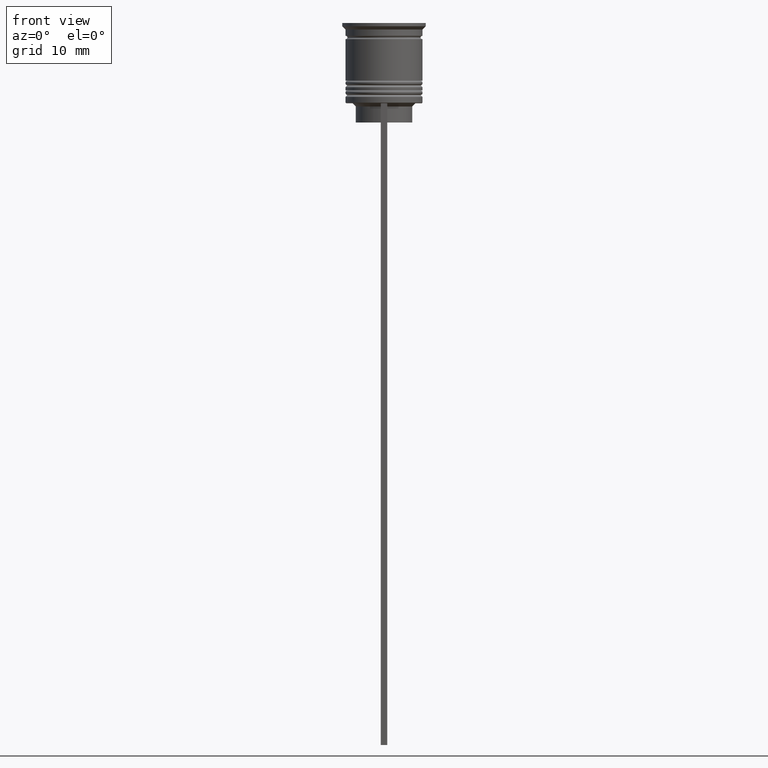
[diagram: clean part render]
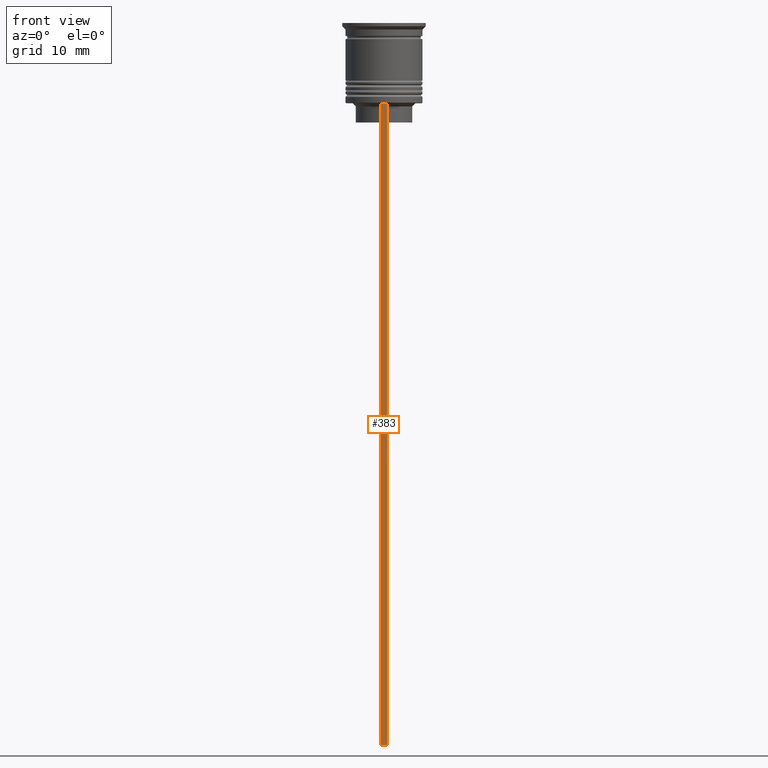
[diagram: same view with one face highlighted and labeled with its STEP entity id]
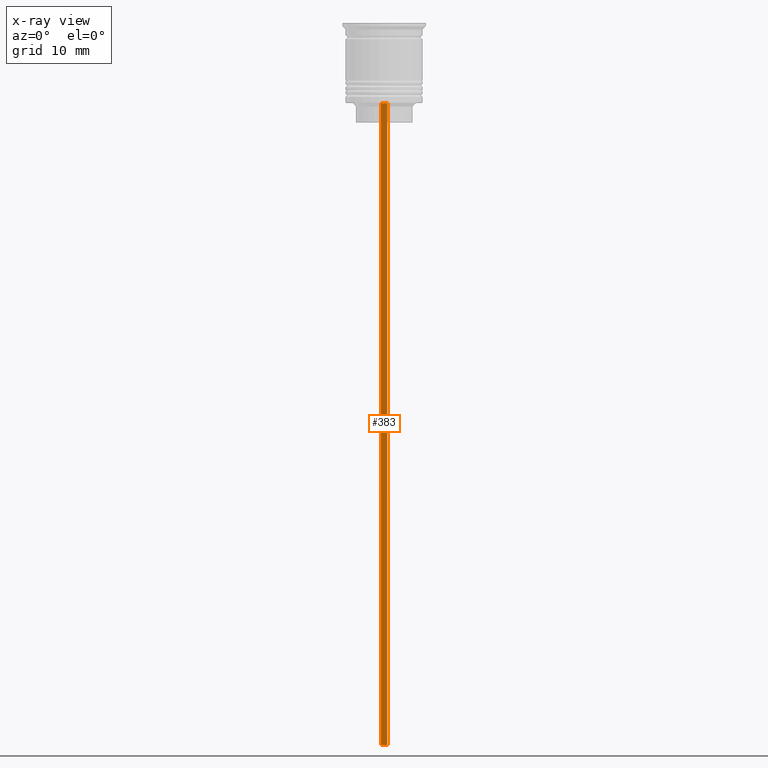
[diagram: x-ray of the same camera — body ghosted, the highlighted face saturated]
A machine part, front view. The second image highlights one B-rep face of the part: STEP entity #383.
The next image is the same camera in x-ray: the body ghosted, the highlighted face saturated — about 0% of this face is hidden behind the body in this view.
In plain terms, the highlighted planar face has unit normal (0, -1, -0).
Its self-contained STEP definition (entity closure, byte-faithful):
#52 = CARTESIAN_POINT ( 'NONE',  ( 0.5000000000000002220, -6.000000000000000000, -112.5000000000000000 ) ) ;
#112 = DIRECTION ( 'NONE',  ( 0.000000000000000000, 0.000000000000000000, -1.000000000000000000 ) ) ;
#368 = DIRECTION ( 'NONE',  ( 1.000000000000000000, 0.000000000000000000, 0.000000000000000000 ) ) ;
#374 = EDGE_CURVE ( 'NONE', #2009, #1525, #1764, .T. ) ;
#383 = ADVANCED_FACE ( 'NONE', ( #1285 ), #1119, .T. ) ;
#410 = CARTESIAN_POINT ( 'NONE',  ( 0.5000000000000002220, -6.000000000000000000, -0.4584054212077061097 ) ) ;
#436 = EDGE_CURVE ( 'NONE', #2009, #2420, #1381, .T. ) ;
#438 = VECTOR ( 'NONE', #112, 1000.000000000000000 ) ;
#534 = ORIENTED_EDGE ( 'NONE', *, *, #2000, .F. ) ;
#736 = CARTESIAN_POINT ( 'NONE',  ( -0.4999999999999997780, -6.000000000000000000, -12.50000000000000000 ) ) ;
#788 = AXIS2_PLACEMENT_3D ( 'NONE', #1491, #2061, #1939 ) ;
#870 = VECTOR ( 'NONE', #368, 1000.000000000000000 ) ;
#904 = CARTESIAN_POINT ( 'NONE',  ( 0.5000000000000002220, -6.000000000000000000, -112.5000000000000000 ) ) ;
#1000 = CARTESIAN_POINT ( 'NONE',  ( -0.4999999999999997780, -6.000000000000000000, -0.4584054212077061097 ) ) ;
#1046 = CARTESIAN_POINT ( 'NONE',  ( 0.5000000000000002220, -6.000000000000000000, -12.50000000000000000 ) ) ;
#1109 = LINE ( 'NONE', #410, #1271 ) ;
#1119 = PLANE ( 'NONE',  #788 ) ;
#1159 = ORIENTED_EDGE ( 'NONE', *, *, #436, .T. ) ;
#1271 = VECTOR ( 'NONE', #1314, 1000.000000000000000 ) ;
#1285 = FACE_OUTER_BOUND ( 'NONE', #1936, .T. ) ;
#1312 = EDGE_CURVE ( 'NONE', #1525, #1420, #1109, .T. ) ;
#1314 = DIRECTION ( 'NONE',  ( 0.000000000000000000, 0.000000000000000000, -1.000000000000000000 ) ) ;
#1381 = LINE ( 'NONE', #1000, #438 ) ;
#1420 = VERTEX_POINT ( 'NONE', #52 ) ;
#1491 = CARTESIAN_POINT ( 'NONE',  ( 0.5000000000000002220, -6.000000000000000000, -0.4584054212077061097 ) ) ;
#1525 = VERTEX_POINT ( 'NONE', #1046 ) ;
#1538 = LINE ( 'NONE', #904, #2454 ) ;
#1764 = LINE ( 'NONE', #2273, #870 ) ;
#1770 = ORIENTED_EDGE ( 'NONE', *, *, #374, .F. ) ;
#1806 = CARTESIAN_POINT ( 'NONE',  ( -0.4999999999999997780, -6.000000000000000000, -112.5000000000000000 ) ) ;
#1936 = EDGE_LOOP ( 'NONE', ( #1770, #1159, #534, #2258 ) ) ;
#1939 = DIRECTION ( 'NONE',  ( 0.000000000000000000, 0.000000000000000000, -1.000000000000000000 ) ) ;
#2000 = EDGE_CURVE ( 'NONE', #1420, #2420, #1538, .T. ) ;
#2009 = VERTEX_POINT ( 'NONE', #736 ) ;
#2060 = DIRECTION ( 'NONE',  ( -1.000000000000000000, 0.000000000000000000, 0.000000000000000000 ) ) ;
#2061 = DIRECTION ( 'NONE',  ( 0.000000000000000000, -1.000000000000000000, -0.000000000000000000 ) ) ;
#2258 = ORIENTED_EDGE ( 'NONE', *, *, #1312, .F. ) ;
#2273 = CARTESIAN_POINT ( 'NONE',  ( 0.5000000000000002220, -6.000000000000000000, -12.50000000000000000 ) ) ;
#2420 = VERTEX_POINT ( 'NONE', #1806 ) ;
#2454 = VECTOR ( 'NONE', #2060, 1000.000000000000000 ) ;